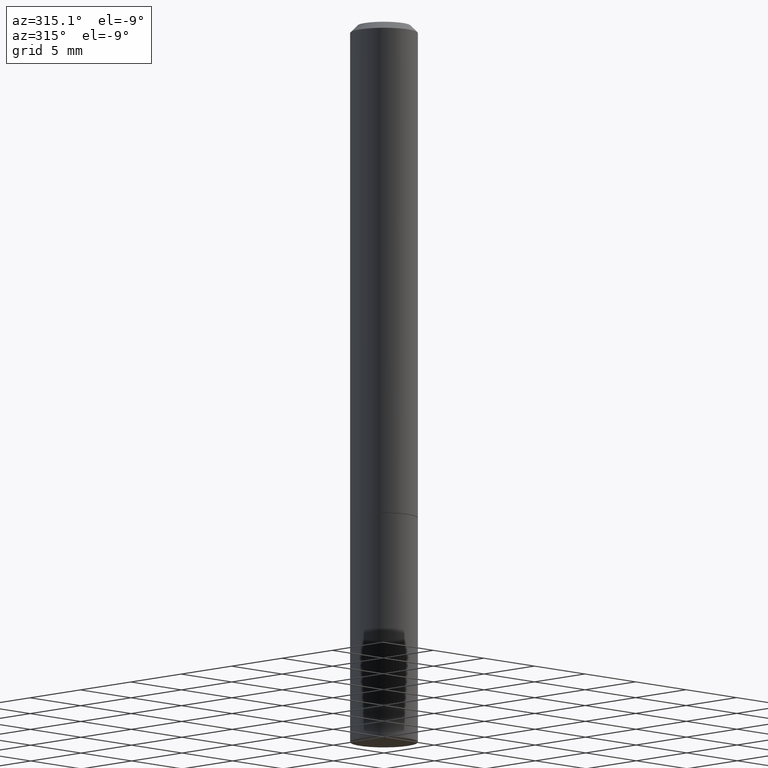
[diagram: clean part render]
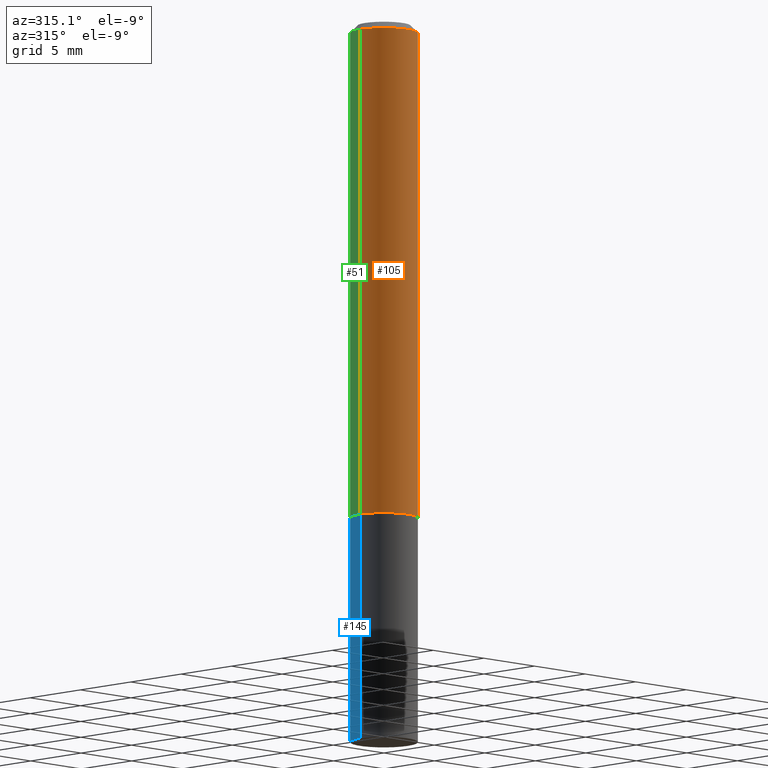
[diagram: same view with three faces highlighted in distinct colors, each labeled with its STEP entity id]
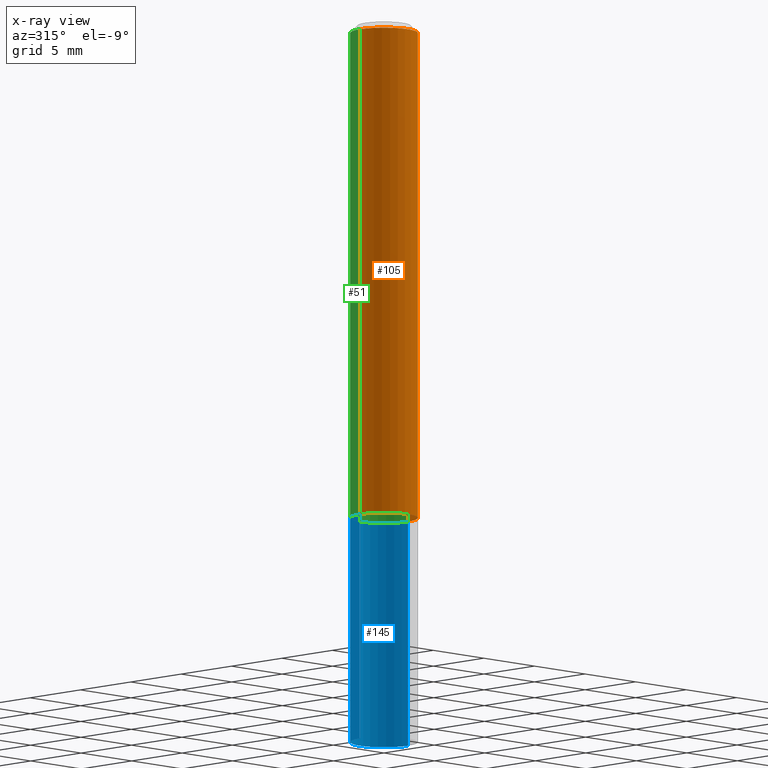
[diagram: x-ray of the same camera — body ghosted, the three highlighted faces saturated]
A machine part, auxiliary view with three faces highlighted in distinct colors.
The next image is the same camera in x-ray (body ghosted, the three faces saturated) — at least one of them is partly hidden behind the body in this view.
Their STEP definitions:

[orange] entity #105 — the highlighted cylindrical surface (edge-blend (fillet) strip) has radius 2.3812 mm, axis along (-0, 0, 1).
#8 = CARTESIAN_POINT ( 'NONE',  ( 0.000000000000000000, 0.000000000000000000, 0.000000000000000000 ) ) ;
#13 = CARTESIAN_POINT ( 'NONE',  ( -0.09374999999999991673, 6.661338147750933326E-16, -4.611501647113969791E-30 ) ) ;
#17 = DIRECTION ( 'NONE',  ( -2.445468806185136877E-29, 3.491481338843145188E-15, 1.000000000000000000 ) ) ;
#18 = EDGE_LOOP ( 'NONE', ( #75, #46, #125, #305 ) ) ;
#32 = CIRCLE ( 'NONE', #240, 0.09375000000000001388 ) ;
#46 = ORIENTED_EDGE ( 'NONE', *, *, #122, .T. ) ;
#55 = EDGE_CURVE ( 'NONE', #98, #192, #152, .T. ) ;
#68 = FACE_OUTER_BOUND ( 'NONE', #18, .T. ) ;
#75 = ORIENTED_EDGE ( 'NONE', *, *, #55, .F. ) ;
#76 = DIRECTION ( 'NONE',  ( -2.445468806185136597E-29, 3.491481338843145583E-15, 1.000000000000000000 ) ) ;
#98 = VERTEX_POINT ( 'NONE', #277 ) ;
#102 = VERTEX_POINT ( 'NONE', #212 ) ;
#105 = ADVANCED_FACE ( 'NONE', ( #68 ), #156, .T. ) ;
#109 = CARTESIAN_POINT ( 'NONE',  ( -0.09374999999999983347, 5.848231242562234171E-16, -0.02000000000000002123 ) ) ;
#111 = CARTESIAN_POINT ( 'NONE',  ( 3.360074139698377778E-29, -4.797295359570481134E-15, -1.373999999999999888 ) ) ;
#122 = EDGE_CURVE ( 'NONE', #98, #313, #32, .T. ) ;
#125 = ORIENTED_EDGE ( 'NONE', *, *, #297, .T. ) ;
#140 = DIRECTION ( 'NONE',  ( 1.000000000000000000, -6.982962677686261189E-15, 0.000000000000000000 ) ) ;
#147 = CIRCLE ( 'NONE', #256, 0.09374999999999983347 ) ;
#152 = LINE ( 'NONE', #13, #170 ) ;
#156 = CYLINDRICAL_SURFACE ( 'NONE', #268, 0.09374999999999991673 ) ;
#157 = DIRECTION ( 'NONE',  ( -2.445468806185136597E-29, 3.491481338843145583E-15, 1.000000000000000000 ) ) ;
#166 = DIRECTION ( 'NONE',  ( 1.000000000000000000, -6.982962677686267499E-15, 0.000000000000000000 ) ) ;
#170 = VECTOR ( 'NONE', #250, 39.37007874015748143 ) ;
#178 = DIRECTION ( 'NONE',  ( 1.000000000000000000, -6.982962677686266711E-15, 4.876176775795935793E-29 ) ) ;
#192 = VERTEX_POINT ( 'NONE', #109 ) ;
#199 = DIRECTION ( 'NONE',  ( -2.445468806185136597E-29, 3.491481338843145583E-15, 1.000000000000000000 ) ) ;
#212 = CARTESIAN_POINT ( 'NONE',  ( 0.09374999999999983347, -7.130013140679429031E-16, -0.02000000000000002123 ) ) ;
#233 = EDGE_CURVE ( 'NONE', #192, #102, #147, .T. ) ;
#240 = AXIS2_PLACEMENT_3D ( 'NONE', #111, #199, #140 ) ;
#250 = DIRECTION ( 'NONE',  ( -2.445468806185136877E-29, 3.491481338843145188E-15, 1.000000000000000000 ) ) ;
#254 = LINE ( 'NONE', #375, #306 ) ;
#256 = AXIS2_PLACEMENT_3D ( 'NONE', #317, #76, #166 ) ;
#268 = AXIS2_PLACEMENT_3D ( 'NONE', #8, #157, #178 ) ;
#277 = CARTESIAN_POINT ( 'NONE',  ( -0.09375000000000001388, -1.767428678398575728E-15, -1.373999999999999888 ) ) ;
#287 = CARTESIAN_POINT ( 'NONE',  ( 0.09375000000000001388, -5.451948110603568638E-15, -1.373999999999999888 ) ) ;
#297 = EDGE_CURVE ( 'NONE', #313, #102, #254, .T. ) ;
#305 = ORIENTED_EDGE ( 'NONE', *, *, #233, .F. ) ;
#306 = VECTOR ( 'NONE', #17, 39.37007874015748143 ) ;
#313 = VERTEX_POINT ( 'NONE', #287 ) ;
#317 = CARTESIAN_POINT ( 'NONE',  ( 4.890937612370278413E-31, -6.982962677686297772E-17, -0.02000000000000002123 ) ) ;
#375 = CARTESIAN_POINT ( 'NONE',  ( 0.09374999999999991673, -6.546527510330869125E-16, 4.571415727308685602E-30 ) ) ;

[blue] entity #145 — the highlighted cylindrical surface (edge-blend (fillet) strip) has radius 2.3813 mm, axis along (-0, 0, 1).
#10 = VERTEX_POINT ( 'NONE', #131 ) ;
#14 = ORIENTED_EDGE ( 'NONE', *, *, #20, .F. ) ;
#20 = EDGE_CURVE ( 'NONE', #10, #302, #377, .T. ) ;
#21 = LINE ( 'NONE', #231, #218 ) ;
#23 = DIRECTION ( 'NONE',  ( -2.445468806185136597E-29, 3.491481338843145583E-15, 1.000000000000000000 ) ) ;
#28 = DIRECTION ( 'NONE',  ( -2.445468806185136597E-29, 3.491481338843145583E-15, 1.000000000000000000 ) ) ;
#42 = CARTESIAN_POINT ( 'NONE',  ( 3.362519608504562260E-29, -4.800786840909324930E-15, -1.375000000000000000 ) ) ;
#52 = CARTESIAN_POINT ( 'NONE',  ( 0.000000000000000000, 0.000000000000000000, 0.000000000000000000 ) ) ;
#53 = AXIS2_PLACEMENT_3D ( 'NONE', #58, #28, #266 ) ;
#56 = FACE_OUTER_BOUND ( 'NONE', #182, .T. ) ;
#58 = CARTESIAN_POINT ( 'NONE',  ( 4.890937612370273194E-29, -6.982962677686291165E-15, -2.000000000000000000 ) ) ;
#72 = AXIS2_PLACEMENT_3D ( 'NONE', #42, #357, #129 ) ;
#81 = DIRECTION ( 'NONE',  ( -2.445468806185136877E-29, 3.491481338843145188E-15, 1.000000000000000000 ) ) ;
#82 = DIRECTION ( 'NONE',  ( -2.445468806185136877E-29, 3.491481338843145188E-15, 1.000000000000000000 ) ) ;
#108 = CARTESIAN_POINT ( 'NONE',  ( -0.09375000000000001388, -5.225740944522714123E-15, -1.375000000000000000 ) ) ;
#129 = DIRECTION ( 'NONE',  ( 1.000000000000000000, -6.982962677686261189E-15, 0.000000000000000000 ) ) ;
#131 = CARTESIAN_POINT ( 'NONE',  ( 0.09375000000000001388, -5.455439591942412434E-15, -1.375000000000000000 ) ) ;
#145 = ADVANCED_FACE ( 'NONE', ( #56 ), #171, .T. ) ;
#164 = ORIENTED_EDGE ( 'NONE', *, *, #271, .F. ) ;
#168 = CARTESIAN_POINT ( 'NONE',  ( -0.09374999999999984734, -6.328309926653205239E-15, -2.000000000000000000 ) ) ;
#171 = CYLINDRICAL_SURFACE ( 'NONE', #184, 0.09375000000000001388 ) ;
#182 = EDGE_LOOP ( 'NONE', ( #252, #366, #14, #164 ) ) ;
#184 = AXIS2_PLACEMENT_3D ( 'NONE', #52, #23, #345 ) ;
#193 = LINE ( 'NONE', #259, #204 ) ;
#204 = VECTOR ( 'NONE', #82, 39.37007874015748143 ) ;
#218 = VECTOR ( 'NONE', #81, 39.37007874015748143 ) ;
#231 = CARTESIAN_POINT ( 'NONE',  ( -0.09375000000000001388, 6.661338147750940229E-16, -4.611501647113973995E-30 ) ) ;
#252 = ORIENTED_EDGE ( 'NONE', *, *, #342, .T. ) ;
#259 = CARTESIAN_POINT ( 'NONE',  ( 0.09375000000000001388, -6.546527510330875041E-16, 4.571415727308690506E-30 ) ) ;
#266 = DIRECTION ( 'NONE',  ( 1.000000000000000000, -6.982962677686261189E-15, 0.000000000000000000 ) ) ;
#271 = EDGE_CURVE ( 'NONE', #382, #10, #193, .T. ) ;
#286 = CIRCLE ( 'NONE', #53, 0.09375000000000001388 ) ;
#302 = VERTEX_POINT ( 'NONE', #108 ) ;
#310 = VERTEX_POINT ( 'NONE', #168 ) ;
#314 = EDGE_CURVE ( 'NONE', #310, #302, #21, .T. ) ;
#342 = EDGE_CURVE ( 'NONE', #382, #310, #286, .T. ) ;
#345 = DIRECTION ( 'NONE',  ( 1.000000000000000000, -6.982962677686265922E-15, 4.876176775795935793E-29 ) ) ;
#357 = DIRECTION ( 'NONE',  ( -2.445468806185136597E-29, 3.491481338843145583E-15, 1.000000000000000000 ) ) ;
#366 = ORIENTED_EDGE ( 'NONE', *, *, #314, .T. ) ;
#377 = CIRCLE ( 'NONE', #72, 0.09375000000000001388 ) ;
#382 = VERTEX_POINT ( 'NONE', #388 ) ;
#388 = CARTESIAN_POINT ( 'NONE',  ( 0.09374999999999984734, -7.626134364977371460E-15, -2.000000000000000000 ) ) ;

[green] entity #51 — the highlighted cylindrical surface (edge-blend (fillet) strip) has radius 2.3812 mm, axis along (-0, 0, 1).
#13 = CARTESIAN_POINT ( 'NONE',  ( -0.09374999999999991673, 6.661338147750933326E-16, -4.611501647113969791E-30 ) ) ;
#15 = CARTESIAN_POINT ( 'NONE',  ( 4.890937612370278413E-31, -6.982962677686297772E-17, -0.02000000000000002123 ) ) ;
#16 = CIRCLE ( 'NONE', #202, 0.09375000000000001388 ) ;
#17 = DIRECTION ( 'NONE',  ( -2.445468806185136877E-29, 3.491481338843145188E-15, 1.000000000000000000 ) ) ;
#33 = CYLINDRICAL_SURFACE ( 'NONE', #321, 0.09374999999999991673 ) ;
#51 = ADVANCED_FACE ( 'NONE', ( #300 ), #33, .T. ) ;
#55 = EDGE_CURVE ( 'NONE', #98, #192, #152, .T. ) ;
#71 = ORIENTED_EDGE ( 'NONE', *, *, #297, .F. ) ;
#79 = DIRECTION ( 'NONE',  ( 1.000000000000000000, -6.982962677686267499E-15, 0.000000000000000000 ) ) ;
#98 = VERTEX_POINT ( 'NONE', #277 ) ;
#100 = ORIENTED_EDGE ( 'NONE', *, *, #381, .T. ) ;
#102 = VERTEX_POINT ( 'NONE', #212 ) ;
#109 = CARTESIAN_POINT ( 'NONE',  ( -0.09374999999999983347, 5.848231242562234171E-16, -0.02000000000000002123 ) ) ;
#116 = CARTESIAN_POINT ( 'NONE',  ( 3.360074139698377778E-29, -4.797295359570481134E-15, -1.373999999999999888 ) ) ;
#120 = DIRECTION ( 'NONE',  ( -2.445468806185136597E-29, 3.491481338843145583E-15, 1.000000000000000000 ) ) ;
#139 = AXIS2_PLACEMENT_3D ( 'NONE', #15, #142, #79 ) ;
#142 = DIRECTION ( 'NONE',  ( -2.445468806185136597E-29, 3.491481338843145583E-15, 1.000000000000000000 ) ) ;
#152 = LINE ( 'NONE', #13, #170 ) ;
#170 = VECTOR ( 'NONE', #250, 39.37007874015748143 ) ;
#189 = EDGE_CURVE ( 'NONE', #102, #192, #318, .T. ) ;
#192 = VERTEX_POINT ( 'NONE', #109 ) ;
#202 = AXIS2_PLACEMENT_3D ( 'NONE', #116, #120, #295 ) ;
#212 = CARTESIAN_POINT ( 'NONE',  ( 0.09374999999999983347, -7.130013140679429031E-16, -0.02000000000000002123 ) ) ;
#243 = ORIENTED_EDGE ( 'NONE', *, *, #55, .T. ) ;
#250 = DIRECTION ( 'NONE',  ( -2.445468806185136877E-29, 3.491481338843145188E-15, 1.000000000000000000 ) ) ;
#254 = LINE ( 'NONE', #375, #306 ) ;
#269 = DIRECTION ( 'NONE',  ( -2.445468806185136597E-29, 3.491481338843145583E-15, 1.000000000000000000 ) ) ;
#274 = ORIENTED_EDGE ( 'NONE', *, *, #189, .F. ) ;
#277 = CARTESIAN_POINT ( 'NONE',  ( -0.09375000000000001388, -1.767428678398575728E-15, -1.373999999999999888 ) ) ;
#287 = CARTESIAN_POINT ( 'NONE',  ( 0.09375000000000001388, -5.451948110603568638E-15, -1.373999999999999888 ) ) ;
#295 = DIRECTION ( 'NONE',  ( 1.000000000000000000, -6.982962677686261189E-15, 0.000000000000000000 ) ) ;
#297 = EDGE_CURVE ( 'NONE', #313, #102, #254, .T. ) ;
#300 = FACE_OUTER_BOUND ( 'NONE', #362, .T. ) ;
#304 = DIRECTION ( 'NONE',  ( 1.000000000000000000, -6.982962677686266711E-15, 4.876176775795935793E-29 ) ) ;
#306 = VECTOR ( 'NONE', #17, 39.37007874015748143 ) ;
#313 = VERTEX_POINT ( 'NONE', #287 ) ;
#318 = CIRCLE ( 'NONE', #139, 0.09374999999999983347 ) ;
#321 = AXIS2_PLACEMENT_3D ( 'NONE', #363, #269, #304 ) ;
#362 = EDGE_LOOP ( 'NONE', ( #100, #243, #274, #71 ) ) ;
#363 = CARTESIAN_POINT ( 'NONE',  ( 0.000000000000000000, 0.000000000000000000, 0.000000000000000000 ) ) ;
#375 = CARTESIAN_POINT ( 'NONE',  ( 0.09374999999999991673, -6.546527510330869125E-16, 4.571415727308685602E-30 ) ) ;
#381 = EDGE_CURVE ( 'NONE', #313, #98, #16, .T. ) ;